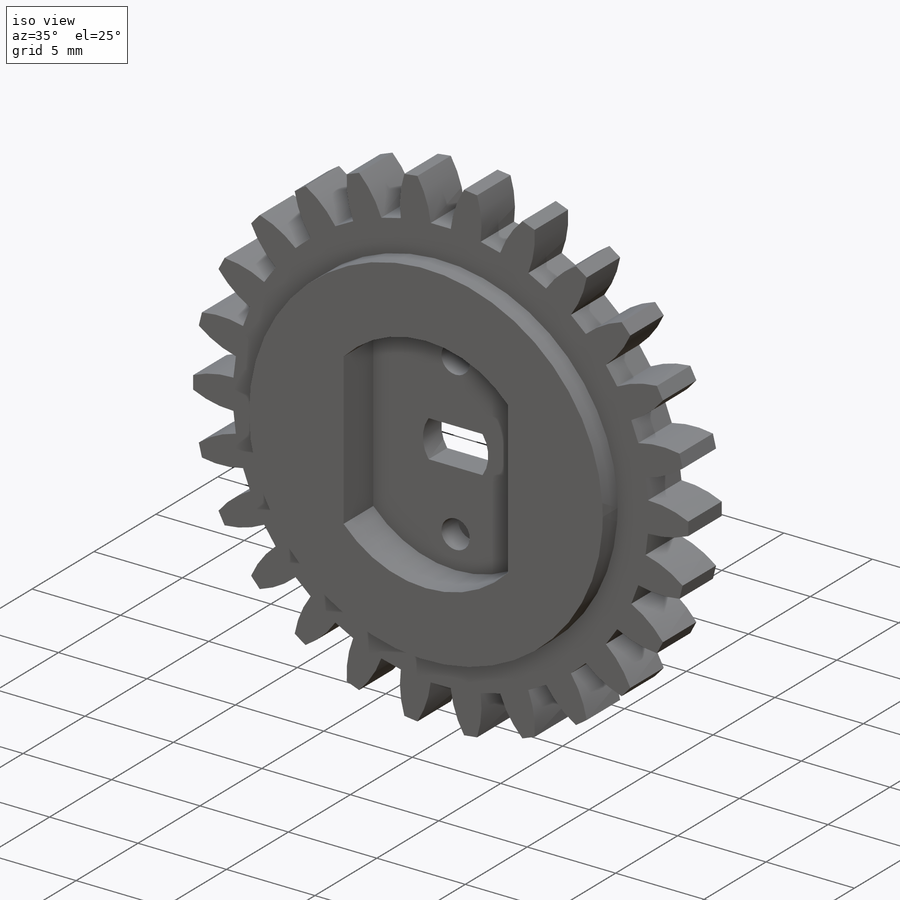
[diagram: iso view]
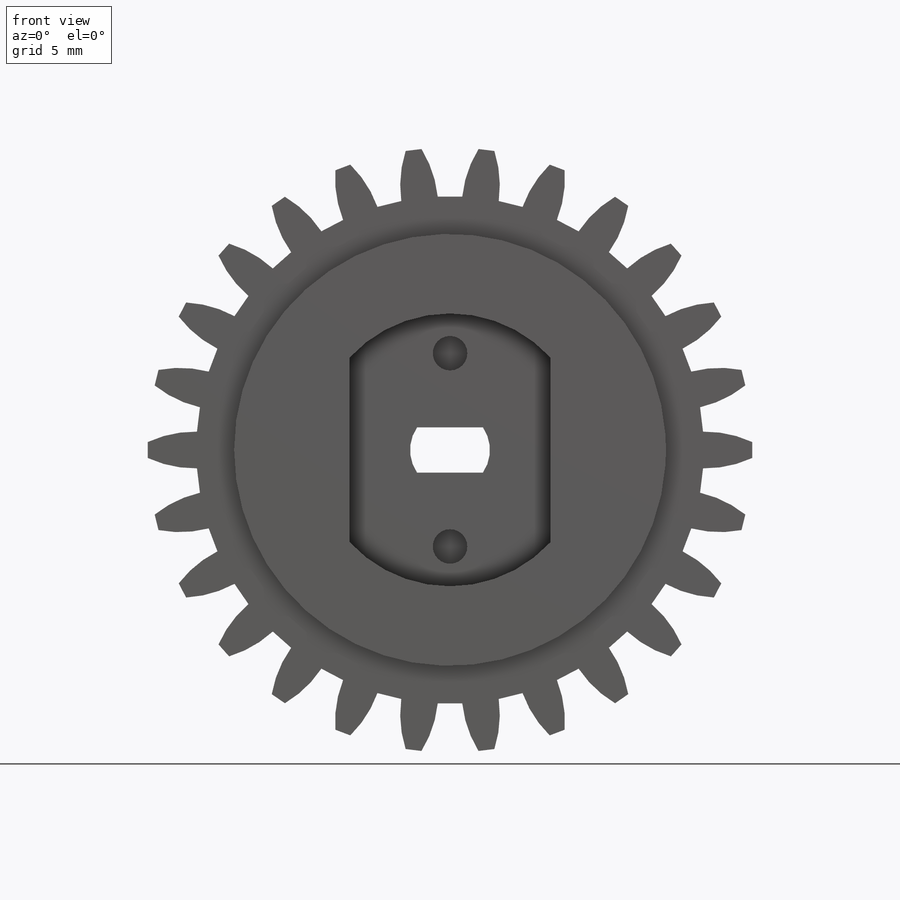
[diagram: front view]
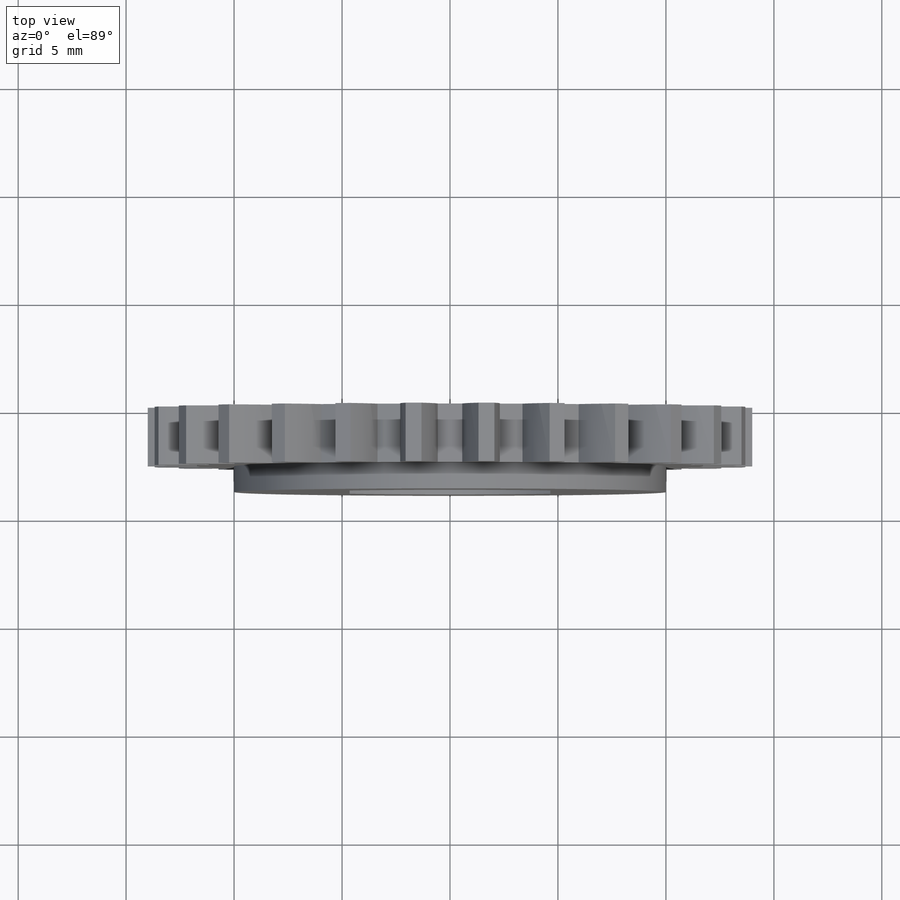
[diagram: top view]
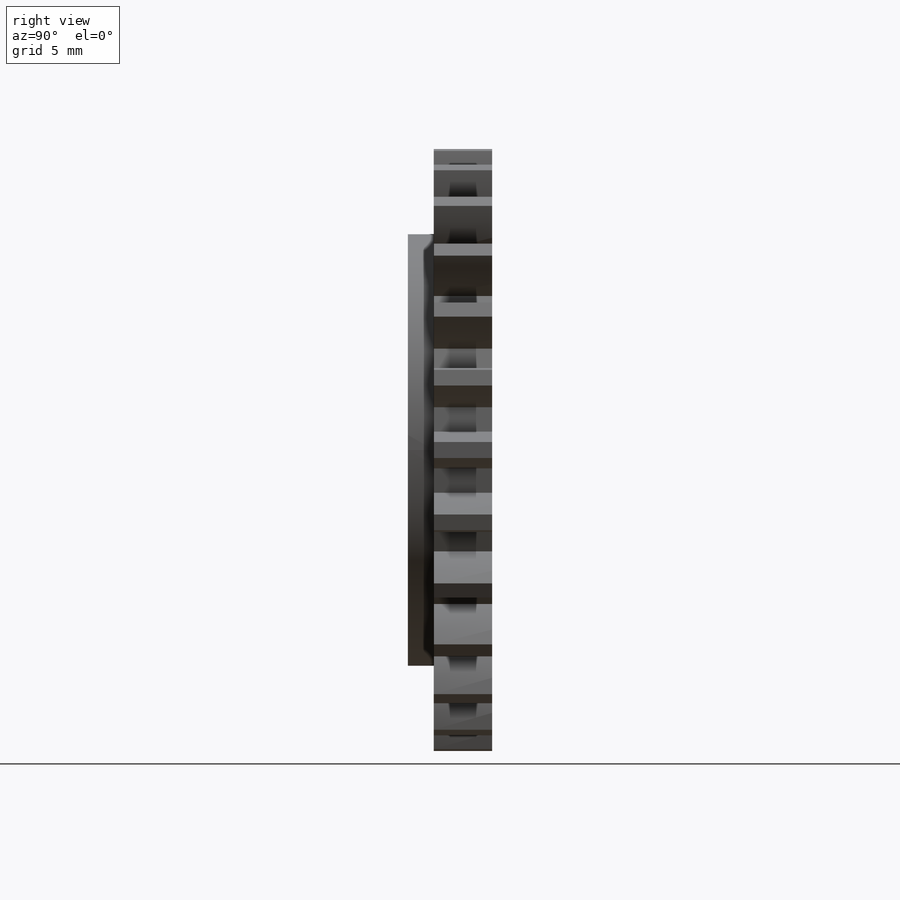
[diagram: right view]
SOLIDWORKS PART (.sldprt)
format: sldprt  version: not decoded by parser v0  size: 659,456 bytes
history: native  units: mm
features: sketch x6, extrude x3, cut_extrude x3, material x1, move_body x1, fillet x1 + 2 further entries (+18 scaffold rows collapsed; 5 parser-record rows omitted)
feature tree (40):
  scaffold x18  (default folders/planes/origin — collapsed)
  material  "Material <not specified>"
  "Annotations"  RD1=14.513172mm RD2=1.2mm RD3=27.990188mm
  "Spur Gear_ISO"
  parser-record x5  (decoder bookkeeping rows leaked as tree rows — omitted from the tree; the rows remain in map.json)
  move_body  "Body-Move/Copy2"
  sketch  "Sketch6"  dims[D1=0.0mm]
  extrude  "Extrude6"  Depth=2.7mm
  sketch  "Sketch3"  dims[D1=3.7mm D2=2.1mm]
  cut_extrude  "Extrude3"  Depth=6mm
  sketch  "Sketch7"  dims[D1=9.3mm D2=12.6mm D3=2.5mm D4=2.5mm D5=8.55mm]
  extrude  "Extrude8"  Depth=1.2mm
  fillet  "Fillet1"  Radius=5mm
  sketch  "Sketch8"  dims[D1=0.0mm]
  cut_extrude  "Extrude9"  Depth=1.2mm
  sketch  "Sketch9"  dims[D1=1.6mm D2=8.95mm]
  cut_extrude  "Extrude10"  Depth=1.35mm
  sketch  "Sketch11"  dims[D1=20.0mm]
  extrude  "Extrude13"  [1 undecoded]
decode coverage: 12 of 14 modeling features carry decoded parameters; 2 rows unclassified (native names shown)
note: 1 parameter value undecoded
note: suppression state not decoded; provenance and decode notes live in map.json
